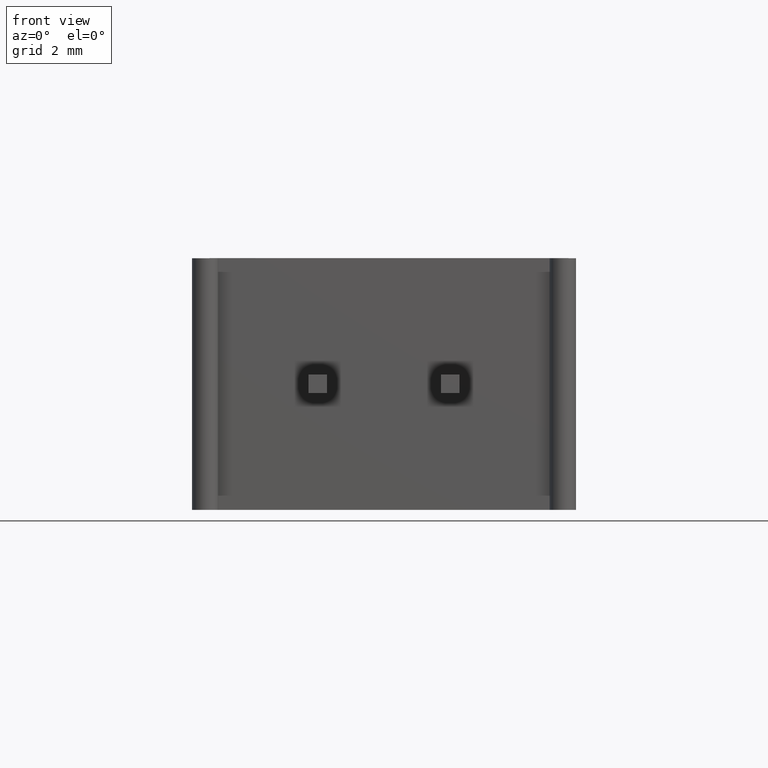
[diagram: clean part render]
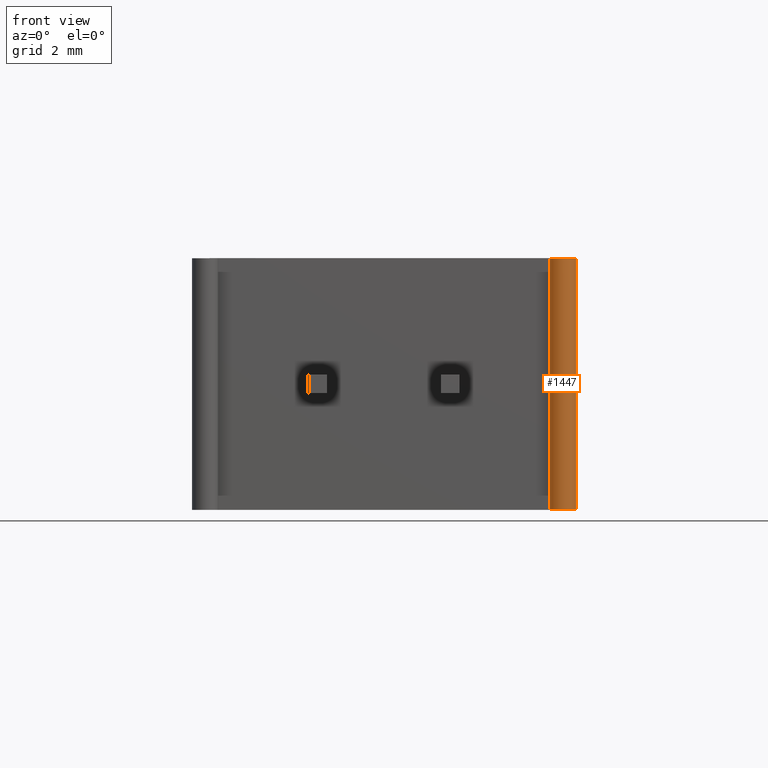
[diagram: same view with one face highlighted and labeled with its STEP entity id]
A machine part, front view. The second image highlights one B-rep face of the part: STEP entity #1447.
In plain terms, the highlighted cylindrical surface (edge-blend (fillet) strip) has radius 0.5 mm, axis along (0, 0, 1).
Its self-contained STEP definition (entity closure, byte-faithful):
#4 = EDGE_CURVE ( 'NONE', #1967, #1819, #1995, .T. ) ;
#14 = DIRECTION ( 'NONE',  ( -1.000000000000000000, 0.0000000000000000000, 0.0000000000000000000 ) ) ;
#34 = AXIS2_PLACEMENT_3D ( 'NONE', #1903, #201, #1032 ) ;
#201 = DIRECTION ( 'NONE',  ( 0.0000000000000000000, 0.0000000000000000000, 1.000000000000000000 ) ) ;
#234 = CARTESIAN_POINT ( 'NONE',  ( 13.99999999999999800, 0.0000000000000000000, 9.500000000000000000 ) ) ;
#316 = CARTESIAN_POINT ( 'NONE',  ( 13.49999999999999800, 0.0000000000000000000, 0.0000000000000000000 ) ) ;
#318 = ORIENTED_EDGE ( 'NONE', *, *, #4, .F. ) ;
#329 = CARTESIAN_POINT ( 'NONE',  ( 14.49999999999999800, 0.0000000000000000000, 0.0000000000000000000 ) ) ;
#429 = AXIS2_PLACEMENT_3D ( 'NONE', #2576, #1288, #1268 ) ;
#449 = CIRCLE ( 'NONE', #429, 0.5000000000000004400 ) ;
#544 = DIRECTION ( 'NONE',  ( 0.0000000000000000000, 0.0000000000000000000, 1.000000000000000000 ) ) ;
#651 = CIRCLE ( 'NONE', #909, 0.5000000000000004400 ) ;
#693 = DIRECTION ( 'NONE',  ( -0.0000000000000000000, -0.0000000000000000000, -1.000000000000000000 ) ) ;
#698 = EDGE_LOOP ( 'NONE', ( #1008, #318, #2306, #2262 ) ) ;
#909 = AXIS2_PLACEMENT_3D ( 'NONE', #234, #2609, #14 ) ;
#944 = VECTOR ( 'NONE', #693, 1000.000000000000000 ) ;
#981 = CARTESIAN_POINT ( 'NONE',  ( 14.50000000000000000, 0.0000000000000000000, 9.500000000000000000 ) ) ;
#1008 = ORIENTED_EDGE ( 'NONE', *, *, #1543, .T. ) ;
#1032 = DIRECTION ( 'NONE',  ( 1.000000000000000000, 0.0000000000000000000, 0.0000000000000000000 ) ) ;
#1137 = VERTEX_POINT ( 'NONE', #981 ) ;
#1142 = CARTESIAN_POINT ( 'NONE',  ( 14.50000000000000000, 0.0000000000000000000, 9.500000000000000000 ) ) ;
#1186 = CARTESIAN_POINT ( 'NONE',  ( 13.49999999999999500, 0.0000000000000000000, 9.500000000000000000 ) ) ;
#1268 = DIRECTION ( 'NONE',  ( -1.000000000000000000, 0.0000000000000000000, 0.0000000000000000000 ) ) ;
#1288 = DIRECTION ( 'NONE',  ( -0.0000000000000000000, -0.0000000000000000000, -1.000000000000000000 ) ) ;
#1341 = EDGE_CURVE ( 'NONE', #1907, #1967, #449, .T. ) ;
#1447 = ADVANCED_FACE ( 'NONE', ( #1936 ), #2072, .T. ) ;
#1543 = EDGE_CURVE ( 'NONE', #1137, #1819, #651, .T. ) ;
#1819 = VERTEX_POINT ( 'NONE', #1186 ) ;
#1903 = CARTESIAN_POINT ( 'NONE',  ( 13.99999999999999800, 0.0000000000000000000, 0.0000000000000000000 ) ) ;
#1907 = VERTEX_POINT ( 'NONE', #329 ) ;
#1936 = FACE_OUTER_BOUND ( 'NONE', #698, .T. ) ;
#1967 = VERTEX_POINT ( 'NONE', #2260 ) ;
#1995 = LINE ( 'NONE', #316, #2171 ) ;
#2072 = CYLINDRICAL_SURFACE ( 'NONE', #34, 0.5000000000000004400 ) ;
#2171 = VECTOR ( 'NONE', #544, 1000.000000000000000 ) ;
#2260 = CARTESIAN_POINT ( 'NONE',  ( 13.49999999999999500, 0.0000000000000000000, 0.0000000000000000000 ) ) ;
#2262 = ORIENTED_EDGE ( 'NONE', *, *, #2328, .F. ) ;
#2306 = ORIENTED_EDGE ( 'NONE', *, *, #1341, .F. ) ;
#2328 = EDGE_CURVE ( 'NONE', #1137, #1907, #2774, .T. ) ;
#2576 = CARTESIAN_POINT ( 'NONE',  ( 13.99999999999999800, 0.0000000000000000000, 0.0000000000000000000 ) ) ;
#2609 = DIRECTION ( 'NONE',  ( -0.0000000000000000000, -0.0000000000000000000, -1.000000000000000000 ) ) ;
#2774 = LINE ( 'NONE', #1142, #944 ) ;